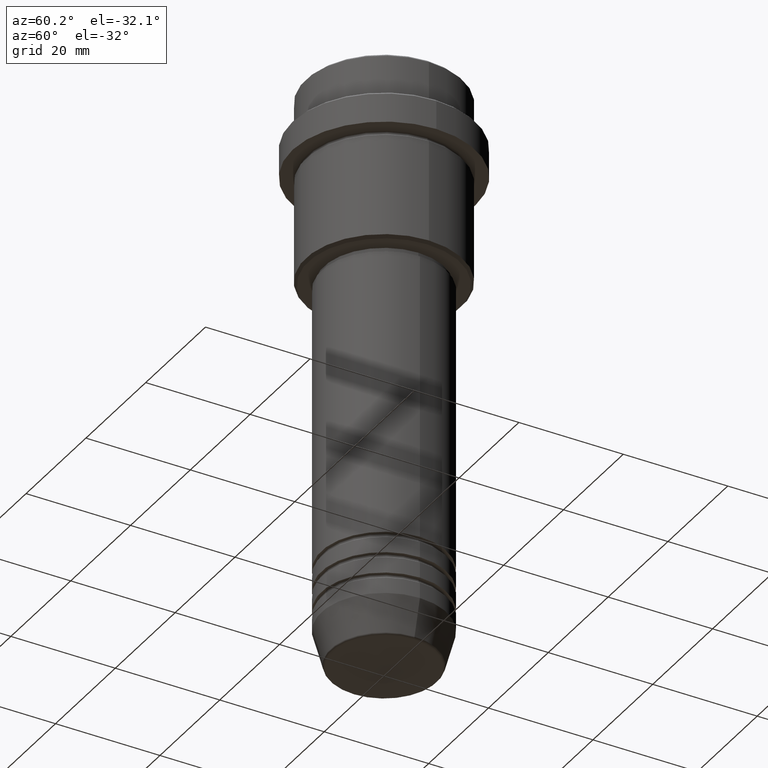
[diagram: clean part render]
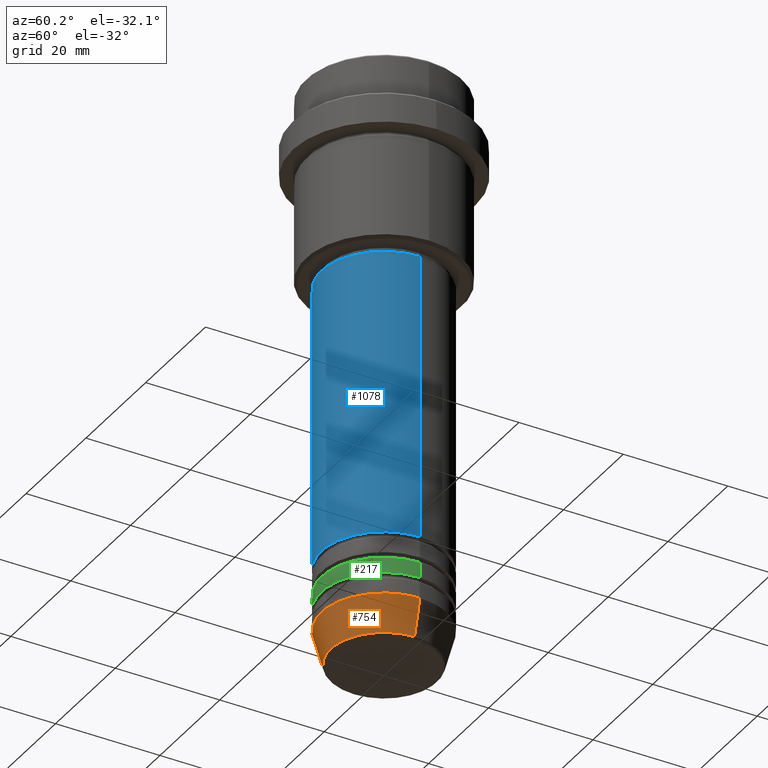
[diagram: same view with three faces highlighted in distinct colors, each labeled with its STEP entity id]
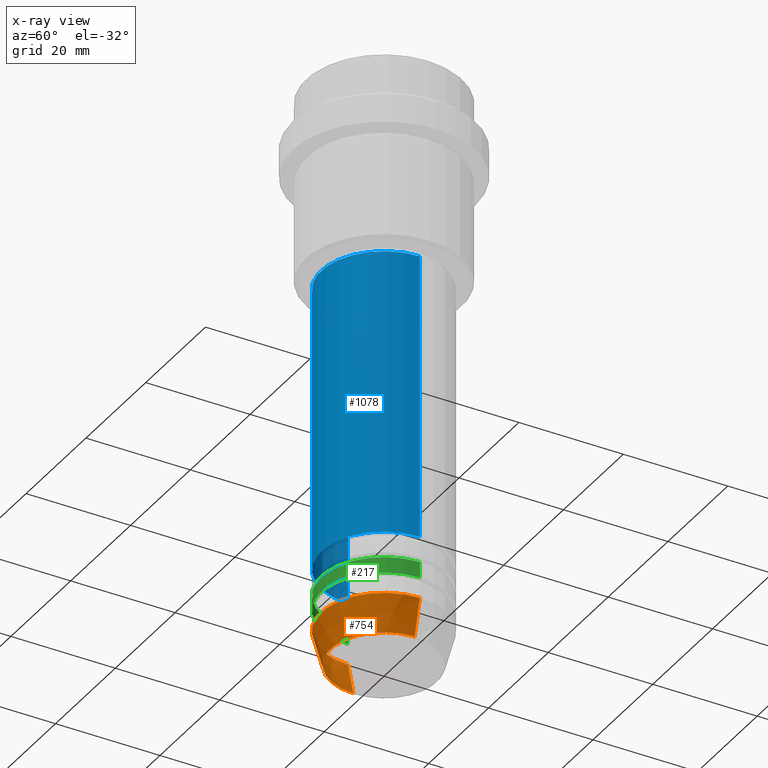
[diagram: x-ray of the same camera — body ghosted, the three highlighted faces saturated]
A machine part, auxiliary view with three faces highlighted in distinct colors.
The next image is the same camera in x-ray (body ghosted, the three faces saturated) — at least one of them is partly hidden behind the body in this view.
Their STEP definitions:

[orange] entity #754 — the highlighted conical surface has half-angle 15 deg.
#18 = CARTESIAN_POINT ( 'NONE',  ( 0.000000000000000000, 0.000000000000000000, -104.0000000000000000 ) ) ;
#21 = FACE_OUTER_BOUND ( 'NONE', #698, .T. ) ;
#39 = CARTESIAN_POINT ( 'NONE',  ( -12.00000000000000000, 1.469576158976823947E-15, -104.0000000000000000 ) ) ;
#131 = VERTEX_POINT ( 'NONE', #302 ) ;
#154 = CARTESIAN_POINT ( 'NONE',  ( 12.00000000000000000, 0.000000000000000000, -104.0000000000000000 ) ) ;
#171 = CARTESIAN_POINT ( 'NONE',  ( -12.00000000000000000, 1.469576158976823947E-15, -104.0000000000000000 ) ) ;
#254 = AXIS2_PLACEMENT_3D ( 'NONE', #840, #614, #1278 ) ;
#282 = ORIENTED_EDGE ( 'NONE', *, *, #1277, .F. ) ;
#302 = CARTESIAN_POINT ( 'NONE',  ( 10.22365507213718594, 0.000000000000000000, -110.6294095225512564 ) ) ;
#314 = DIRECTION ( 'NONE',  ( -0.000000000000000000, -0.000000000000000000, 1.000000000000000000 ) ) ;
#347 = VERTEX_POINT ( 'NONE', #171 ) ;
#516 = VERTEX_POINT ( 'NONE', #1150 ) ;
#518 = DIRECTION ( 'NONE',  ( 1.000000000000000000, 0.000000000000000000, 0.000000000000000000 ) ) ;
#526 = VERTEX_POINT ( 'NONE', #538 ) ;
#538 = CARTESIAN_POINT ( 'NONE',  ( -10.22365507213718594, 1.360806402472382547E-15, -110.6294095225512564 ) ) ;
#614 = DIRECTION ( 'NONE',  ( -0.000000000000000000, -0.000000000000000000, 1.000000000000000000 ) ) ;
#675 = EDGE_CURVE ( 'NONE', #131, #516, #691, .T. ) ;
#687 = DIRECTION ( 'NONE',  ( -0.2588190451025217942, 3.169619151431777884E-17, 0.9659258262890679791 ) ) ;
#690 = CIRCLE ( 'NONE', #1354, 10.22365507213718594 ) ;
#691 = LINE ( 'NONE', #154, #919 ) ;
#698 = EDGE_LOOP ( 'NONE', ( #1070, #908, #1246, #282 ) ) ;
#703 = LINE ( 'NONE', #39, #1287 ) ;
#754 = ADVANCED_FACE ( 'NONE', ( #21 ), #1397, .T. ) ;
#840 = CARTESIAN_POINT ( 'NONE',  ( 0.000000000000000000, 0.000000000000000000, -104.0000000000000000 ) ) ;
#877 = EDGE_CURVE ( 'NONE', #526, #131, #690, .T. ) ;
#908 = ORIENTED_EDGE ( 'NONE', *, *, #877, .T. ) ;
#919 = VECTOR ( 'NONE', #921, 1000.000000000000000 ) ;
#921 = DIRECTION ( 'NONE',  ( 0.2588190451025217942, 0.000000000000000000, 0.9659258262890679791 ) ) ;
#950 = CIRCLE ( 'NONE', #254, 12.00000000000000000 ) ;
#964 = DIRECTION ( 'NONE',  ( -0.000000000000000000, -0.000000000000000000, 1.000000000000000000 ) ) ;
#979 = DIRECTION ( 'NONE',  ( 1.000000000000000000, 0.000000000000000000, 0.000000000000000000 ) ) ;
#1035 = AXIS2_PLACEMENT_3D ( 'NONE', #18, #314, #518 ) ;
#1070 = ORIENTED_EDGE ( 'NONE', *, *, #1093, .F. ) ;
#1093 = EDGE_CURVE ( 'NONE', #526, #347, #703, .T. ) ;
#1150 = CARTESIAN_POINT ( 'NONE',  ( 12.00000000000000000, 0.000000000000000000, -104.0000000000000000 ) ) ;
#1197 = CARTESIAN_POINT ( 'NONE',  ( 0.000000000000000000, 0.000000000000000000, -110.6294095225512564 ) ) ;
#1246 = ORIENTED_EDGE ( 'NONE', *, *, #675, .T. ) ;
#1277 = EDGE_CURVE ( 'NONE', #347, #516, #950, .T. ) ;
#1278 = DIRECTION ( 'NONE',  ( 1.000000000000000000, 0.000000000000000000, 0.000000000000000000 ) ) ;
#1287 = VECTOR ( 'NONE', #687, 1000.000000000000000 ) ;
#1354 = AXIS2_PLACEMENT_3D ( 'NONE', #1197, #964, #979 ) ;
#1397 = CONICAL_SURFACE ( 'NONE', #1035, 12.00000000000000000, 0.2617993877991505181 ) ;

[blue] entity #1078 — the highlighted cylindrical surface (partial cylindrical patch) has radius 12 mm, axis along (-0, -0, 1).
#23 = ORIENTED_EDGE ( 'NONE', *, *, #792, .F. ) ;
#25 = LINE ( 'NONE', #355, #746 ) ;
#29 = AXIS2_PLACEMENT_3D ( 'NONE', #1359, #697, #385 ) ;
#76 = CARTESIAN_POINT ( 'NONE',  ( -12.00000000000000000, 1.469576158976823947E-15, -91.99999999999988631 ) ) ;
#187 = CIRCLE ( 'NONE', #1014, 11.99999999999999822 ) ;
#189 = CARTESIAN_POINT ( 'NONE',  ( 11.99999999999999822, 0.000000000000000000, -37.00000000000002132 ) ) ;
#204 = CARTESIAN_POINT ( 'NONE',  ( 0.000000000000000000, 0.000000000000000000, -37.00000000000002132 ) ) ;
#242 = FACE_OUTER_BOUND ( 'NONE', #859, .T. ) ;
#290 = DIRECTION ( 'NONE',  ( -0.000000000000000000, -0.000000000000000000, 1.000000000000000000 ) ) ;
#293 = EDGE_CURVE ( 'NONE', #298, #963, #751, .T. ) ;
#298 = VERTEX_POINT ( 'NONE', #76 ) ;
#312 = DIRECTION ( 'NONE',  ( 1.000000000000000000, 0.000000000000000000, 0.000000000000000000 ) ) ;
#341 = CIRCLE ( 'NONE', #1196, 12.00000000000000000 ) ;
#355 = CARTESIAN_POINT ( 'NONE',  ( 12.00000000000000000, 0.000000000000000000, 0.000000000000000000 ) ) ;
#385 = DIRECTION ( 'NONE',  ( 1.000000000000000000, 0.000000000000000000, 0.000000000000000000 ) ) ;
#410 = DIRECTION ( 'NONE',  ( -0.000000000000000000, -0.000000000000000000, 1.000000000000000000 ) ) ;
#462 = DIRECTION ( 'NONE',  ( -0.000000000000000000, -0.000000000000000000, 1.000000000000000000 ) ) ;
#599 = VERTEX_POINT ( 'NONE', #189 ) ;
#697 = DIRECTION ( 'NONE',  ( -0.000000000000000000, -0.000000000000000000, 1.000000000000000000 ) ) ;
#746 = VECTOR ( 'NONE', #462, 1000.000000000000000 ) ;
#747 = ORIENTED_EDGE ( 'NONE', *, *, #293, .F. ) ;
#751 = LINE ( 'NONE', #1191, #1326 ) ;
#763 = ORIENTED_EDGE ( 'NONE', *, *, #942, .T. ) ;
#792 = EDGE_CURVE ( 'NONE', #963, #599, #187, .T. ) ;
#801 = ORIENTED_EDGE ( 'NONE', *, *, #817, .T. ) ;
#817 = EDGE_CURVE ( 'NONE', #298, #993, #341, .T. ) ;
#852 = CARTESIAN_POINT ( 'NONE',  ( 0.000000000000000000, 0.000000000000000000, -91.99999999999988631 ) ) ;
#859 = EDGE_LOOP ( 'NONE', ( #747, #801, #763, #23 ) ) ;
#942 = EDGE_CURVE ( 'NONE', #993, #599, #25, .T. ) ;
#963 = VERTEX_POINT ( 'NONE', #1109 ) ;
#993 = VERTEX_POINT ( 'NONE', #1329 ) ;
#1014 = AXIS2_PLACEMENT_3D ( 'NONE', #204, #290, #312 ) ;
#1078 = ADVANCED_FACE ( 'NONE', ( #242 ), #1122, .T. ) ;
#1109 = CARTESIAN_POINT ( 'NONE',  ( -11.99999999999999822, 1.469576158976823750E-15, -37.00000000000002132 ) ) ;
#1122 = CYLINDRICAL_SURFACE ( 'NONE', #29, 12.00000000000000000 ) ;
#1179 = DIRECTION ( 'NONE',  ( -0.000000000000000000, -0.000000000000000000, 1.000000000000000000 ) ) ;
#1191 = CARTESIAN_POINT ( 'NONE',  ( -12.00000000000000000, 1.469576158976823947E-15, 0.000000000000000000 ) ) ;
#1196 = AXIS2_PLACEMENT_3D ( 'NONE', #852, #410, #1393 ) ;
#1326 = VECTOR ( 'NONE', #1179, 1000.000000000000000 ) ;
#1329 = CARTESIAN_POINT ( 'NONE',  ( 12.00000000000000000, 0.000000000000000000, -91.99999999999988631 ) ) ;
#1359 = CARTESIAN_POINT ( 'NONE',  ( 0.000000000000000000, 0.000000000000000000, 0.000000000000000000 ) ) ;
#1393 = DIRECTION ( 'NONE',  ( 1.000000000000000000, 0.000000000000000000, 0.000000000000000000 ) ) ;

[green] entity #217 — the highlighted cylindrical surface (partial cylindrical patch) has radius 12 mm, axis along (-0, -0, 1).
#32 = CARTESIAN_POINT ( 'NONE',  ( 12.00000000000000000, 0.000000000000000000, 0.000000000000000000 ) ) ;
#48 = CIRCLE ( 'NONE', #1216, 12.00000000000000000 ) ;
#54 = ORIENTED_EDGE ( 'NONE', *, *, #102, .F. ) ;
#58 = ORIENTED_EDGE ( 'NONE', *, *, #463, .T. ) ;
#69 = VECTOR ( 'NONE', #467, 1000.000000000000000 ) ;
#102 = EDGE_CURVE ( 'NONE', #258, #839, #450, .T. ) ;
#155 = CARTESIAN_POINT ( 'NONE',  ( -12.00000000000000000, 1.469576158976823947E-15, 0.000000000000000000 ) ) ;
#200 = CARTESIAN_POINT ( 'NONE',  ( 0.000000000000000000, 0.000000000000000000, -99.99999999999988631 ) ) ;
#217 = ADVANCED_FACE ( 'NONE', ( #758 ), #976, .T. ) ;
#236 = DIRECTION ( 'NONE',  ( -0.000000000000000000, -0.000000000000000000, 1.000000000000000000 ) ) ;
#258 = VERTEX_POINT ( 'NONE', #1121 ) ;
#291 = ORIENTED_EDGE ( 'NONE', *, *, #902, .T. ) ;
#359 = LINE ( 'NONE', #32, #69 ) ;
#408 = DIRECTION ( 'NONE',  ( -0.000000000000000000, -0.000000000000000000, 1.000000000000000000 ) ) ;
#419 = AXIS2_PLACEMENT_3D ( 'NONE', #520, #408, #1164 ) ;
#450 = LINE ( 'NONE', #155, #688 ) ;
#463 = EDGE_CURVE ( 'NONE', #1051, #1269, #359, .T. ) ;
#466 = DIRECTION ( 'NONE',  ( -0.000000000000000000, -0.000000000000000000, 1.000000000000000000 ) ) ;
#467 = DIRECTION ( 'NONE',  ( -0.000000000000000000, -0.000000000000000000, 1.000000000000000000 ) ) ;
#520 = CARTESIAN_POINT ( 'NONE',  ( 0.000000000000000000, 0.000000000000000000, -96.99999999999988631 ) ) ;
#542 = CARTESIAN_POINT ( 'NONE',  ( -12.00000000000000000, 1.469576158976823947E-15, -96.99999999999988631 ) ) ;
#635 = DIRECTION ( 'NONE',  ( -0.000000000000000000, -0.000000000000000000, 1.000000000000000000 ) ) ;
#688 = VECTOR ( 'NONE', #466, 1000.000000000000000 ) ;
#735 = CARTESIAN_POINT ( 'NONE',  ( 12.00000000000000000, 0.000000000000000000, -96.99999999999988631 ) ) ;
#758 = FACE_OUTER_BOUND ( 'NONE', #1239, .T. ) ;
#839 = VERTEX_POINT ( 'NONE', #542 ) ;
#861 = CARTESIAN_POINT ( 'NONE',  ( 0.000000000000000000, 0.000000000000000000, 0.000000000000000000 ) ) ;
#902 = EDGE_CURVE ( 'NONE', #258, #1051, #48, .T. ) ;
#976 = CYLINDRICAL_SURFACE ( 'NONE', #986, 12.00000000000000000 ) ;
#986 = AXIS2_PLACEMENT_3D ( 'NONE', #861, #236, #1236 ) ;
#1038 = CIRCLE ( 'NONE', #419, 12.00000000000000000 ) ;
#1051 = VERTEX_POINT ( 'NONE', #1208 ) ;
#1077 = DIRECTION ( 'NONE',  ( 1.000000000000000000, 0.000000000000000000, 0.000000000000000000 ) ) ;
#1087 = ORIENTED_EDGE ( 'NONE', *, *, #1261, .F. ) ;
#1121 = CARTESIAN_POINT ( 'NONE',  ( -12.00000000000000000, 1.469576158976823947E-15, -99.99999999999988631 ) ) ;
#1164 = DIRECTION ( 'NONE',  ( 1.000000000000000000, 0.000000000000000000, 0.000000000000000000 ) ) ;
#1208 = CARTESIAN_POINT ( 'NONE',  ( 12.00000000000000000, 0.000000000000000000, -99.99999999999988631 ) ) ;
#1216 = AXIS2_PLACEMENT_3D ( 'NONE', #200, #635, #1077 ) ;
#1236 = DIRECTION ( 'NONE',  ( 1.000000000000000000, 0.000000000000000000, 0.000000000000000000 ) ) ;
#1239 = EDGE_LOOP ( 'NONE', ( #54, #291, #58, #1087 ) ) ;
#1261 = EDGE_CURVE ( 'NONE', #839, #1269, #1038, .T. ) ;
#1269 = VERTEX_POINT ( 'NONE', #735 ) ;